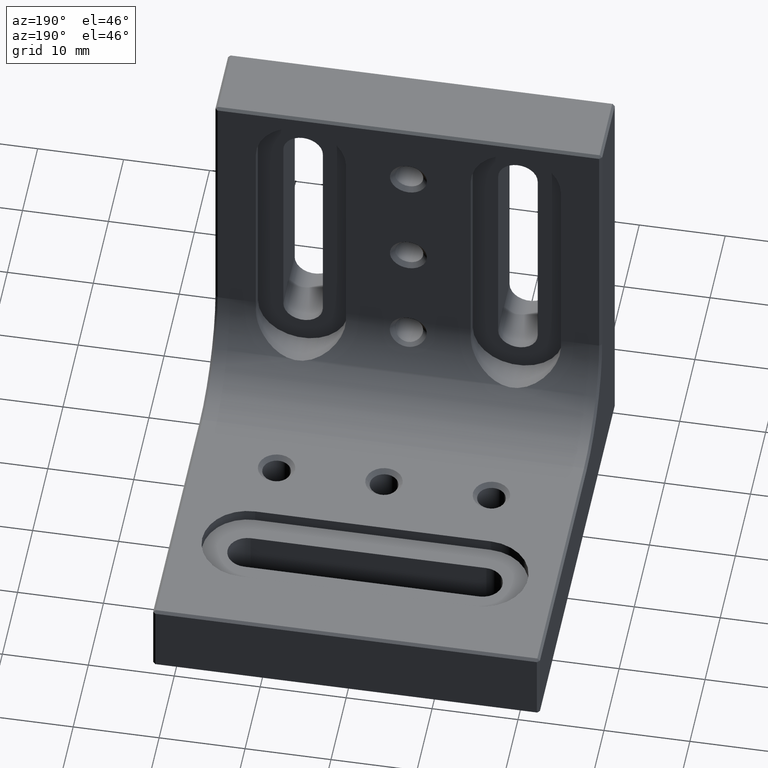
[diagram: clean part render]
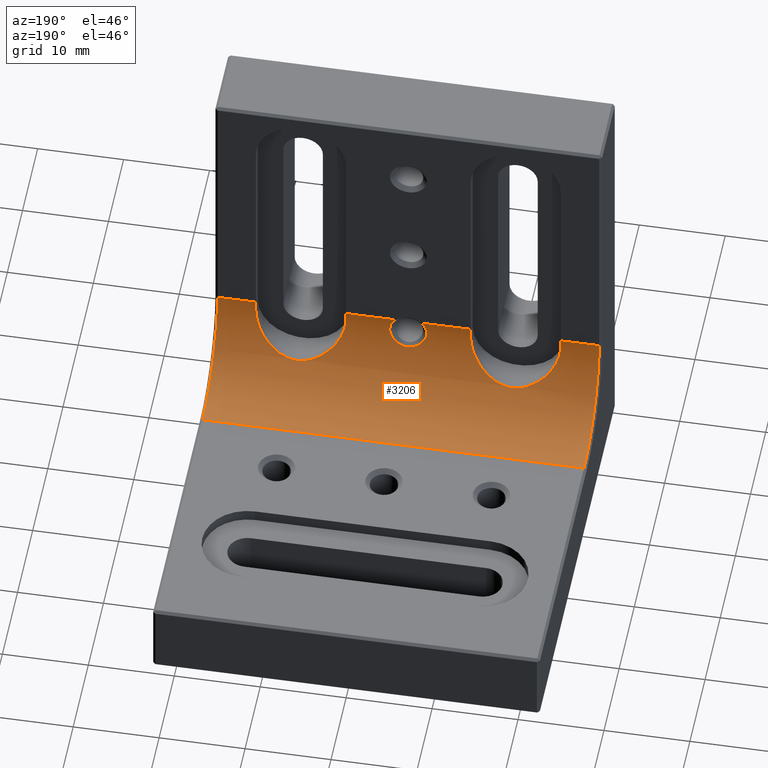
[diagram: same view with one face highlighted and labeled with its STEP entity id]
A machine part, auxiliary view. The second image highlights one B-rep face of the part: STEP entity #3206.
In plain terms, the highlighted cylindrical surface (partial cylindrical patch) has radius 10 mm, axis along (1, 0, 0).
Its self-contained STEP definition (entity closure, byte-faithful):
#7 = CARTESIAN_POINT ( 'NONE',  ( -0.5329770410534748759, 9.518524607792965497, 15.43749380868001531 ) ) ;
#13 = LINE ( 'NONE', #1801, #1559 ) ;
#88 = VERTEX_POINT ( 'NONE', #3167 ) ;
#92 = DIRECTION ( 'NONE',  ( 0.000000000000000000, 0.000000000000000000, -1.000000000000000000 ) ) ;
#143 = CARTESIAN_POINT ( 'NONE',  ( -22.50000000000000000, 8.900000000000000355, 18.89999999999999147 ) ) ;
#153 = CARTESIAN_POINT ( 'NONE',  ( 9.830262403570381835, 10.64126356667555484, 13.25691596540233874 ) ) ;
#163 = VERTEX_POINT ( 'NONE', #1252 ) ;
#170 = CARTESIAN_POINT ( 'NONE',  ( -17.04194963836521026, 9.630595705346557622, 15.13557875490741900 ) ) ;
#171 = EDGE_CURVE ( 'NONE', #2072, #2194, #1556, .T. ) ;
#172 = CARTESIAN_POINT ( 'NONE',  ( 7.321681961952192452, 9.098842714955608812, 16.90806192853562351 ) ) ;
#185 = CARTESIAN_POINT ( 'NONE',  ( -17.74085925873384895, 9.006529535375307205, 17.43334009019261188 ) ) ;
#187 = CARTESIAN_POINT ( 'NONE',  ( 8.333237051948049867, 9.876814206245750682, 14.57856026078860978 ) ) ;
#219 = CARTESIAN_POINT ( 'NONE',  ( -7.425115118801239866, 9.210921543122092103, 16.40150667806678086 ) ) ;
#223 = CARTESIAN_POINT ( 'NONE',  ( 7.596921809555468030, 9.357459637393372276, 15.90540373703046306 ) ) ;
#228 = DIRECTION ( 'NONE',  ( 0.000000000000000000, 3.469446951953613400E-15, 1.000000000000000000 ) ) ;
#248 = ORIENTED_EDGE ( 'NONE', *, *, #3611, .F. ) ;
#266 = CARTESIAN_POINT ( 'NONE',  ( 7.249999999999992895, 18.89999999999999503, 18.89999999999999147 ) ) ;
#277 = CARTESIAN_POINT ( 'NONE',  ( -1.801244126878009721, 8.899999999999996803, 18.61497348076579428 ) ) ;
#293 = CARTESIAN_POINT ( 'NONE',  ( -22.20000000000000284, 18.89999999999999503, 18.89999999999999147 ) ) ;
#308 = DIRECTION ( 'NONE',  ( -1.000000000000000000, 0.000000000000000000, 0.000000000000000000 ) ) ;
#317 = CARTESIAN_POINT ( 'NONE',  ( -0.4300247448959653718, 9.526917445615884716, 15.41494682803085148 ) ) ;
#331 = EDGE_CURVE ( 'NONE', #3451, #2801, #2104, .T. ) ;
#357 = CARTESIAN_POINT ( 'NONE',  ( 1.797709428718944791, 9.244516921121469721, 16.29624652244308081 ) ) ;
#382 = LINE ( 'NONE', #1570, #1611 ) ;
#389 = ORIENTED_EDGE ( 'NONE', *, *, #171, .F. ) ;
#416 = LINE ( 'NONE', #3546, #1259 ) ;
#429 = VERTEX_POINT ( 'NONE', #3314 ) ;
#452 = CARTESIAN_POINT ( 'NONE',  ( 7.249999999999992895, 8.961795936890805336, 17.78999999999999915 ) ) ;
#467 = CARTESIAN_POINT ( 'NONE',  ( -17.75000000000000355, 8.961795936890805336, 17.78999999999999915 ) ) ;
#470 = CARTESIAN_POINT ( 'NONE',  ( 7.537162431420297182, 9.307635266939071172, 16.06875884686546030 ) ) ;
#483 = CARTESIAN_POINT ( 'NONE',  ( -12.86041645706788117, 11.18317037623879706, 12.53992605647932734 ) ) ;
#486 = CARTESIAN_POINT ( 'NONE',  ( 16.45949435896853075, 10.00308145208230215, 14.32638021764552327 ) ) ;
#496 = CARTESIAN_POINT ( 'NONE',  ( -14.87147047841548364, 10.75664276233968764, 13.09367092105081376 ) ) ;
#498 = CARTESIAN_POINT ( 'NONE',  ( 8.548003191861003103, 10.00743111087753157, 14.31806745517764057 ) ) ;
#508 = ORIENTED_EDGE ( 'NONE', *, *, #2523, .T. ) ;
#515 = CARTESIAN_POINT ( 'NONE',  ( -7.249999999999992895, 8.981779982566365561, 17.61107610456737405 ) ) ;
#518 = CARTESIAN_POINT ( 'NONE',  ( 17.67867809741985141, 9.098391797940996284, 16.91036329719471354 ) ) ;
#538 = CARTESIAN_POINT ( 'NONE',  ( -0.2168471117832139472, 9.538467693005117098, 15.38403853151898559 ) ) ;
#552 = EDGE_CURVE ( 'NONE', #2728, #2194, #955, .T. ) ;
#559 = CARTESIAN_POINT ( 'NONE',  ( 17.70508661622474023, 9.064944058504023516, 17.08255339719457666 ) ) ;
#594 = CARTESIAN_POINT ( 'NONE',  ( 22.20000000000000284, 8.900000000000000355, 18.89999999999999147 ) ) ;
#598 = CARTESIAN_POINT ( 'NONE',  ( 17.57488488119874859, 9.210921543122092103, 16.40150667806677731 ) ) ;
#618 = ORIENTED_EDGE ( 'NONE', *, *, #2715, .F. ) ;
#630 = CARTESIAN_POINT ( 'NONE',  ( 1.646550238805394084, 8.899999999999996803, 18.75664515097510332 ) ) ;
#633 = CIRCLE ( 'NONE', #811, 10.00000000000000178 ) ;
#649 = EDGE_CURVE ( 'NONE', #3111, #1513, #3349, .T. ) ;
#655 = DIRECTION ( 'NONE',  ( 1.000000000000000000, -0.000000000000000000, -0.000000000000000000 ) ) ;
#658 = VERTEX_POINT ( 'NONE', #1446 ) ;
#671 = CARTESIAN_POINT ( 'NONE',  ( 1.979334311437581206, 8.922007466604108927, 18.22991894400422197 ) ) ;
#689 = CARTESIAN_POINT ( 'NONE',  ( 2.054101058397320045, 8.936825020740510439, 18.03716284806098358 ) ) ;
#727 = DIRECTION ( 'NONE',  ( 1.000000000000000000, -0.000000000000000000, -0.000000000000000000 ) ) ;
#733 = CARTESIAN_POINT ( 'NONE',  ( 12.86256744171844169, 11.18304831116774167, 12.54007416384138374 ) ) ;
#752 = CARTESIAN_POINT ( 'NONE',  ( -17.75000000000000355, 18.89999999999999503, 18.89999999999999147 ) ) ;
#764 = EDGE_CURVE ( 'NONE', #2072, #2933, #1530, .T. ) ;
#769 = CARTESIAN_POINT ( 'NONE',  ( 9.016561455624794164, 10.26573045186713884, 13.84814126649639832 ) ) ;
#782 = CARTESIAN_POINT ( 'NONE',  ( -12.13743255828155121, 11.18304831116774167, 12.54007416384138374 ) ) ;
#797 = CARTESIAN_POINT ( 'NONE',  ( -9.823224139731292937, 10.63837451954872648, 13.26116750677104328 ) ) ;
#799 = CARTESIAN_POINT ( 'NONE',  ( 7.434615459693820760, 9.216229134181880056, 16.39920623449153680 ) ) ;
#802 = EDGE_CURVE ( 'NONE', #658, #3058, #416, .T. ) ;
#811 = AXIS2_PLACEMENT_3D ( 'NONE', #266, #1136, #2818 ) ;
#837 = EDGE_CURVE ( 'NONE', #1513, #429, #2335, .T. ) ;
#867 = DIRECTION ( 'NONE',  ( 0.000000000000000000, 0.000000000000000000, -1.000000000000000000 ) ) ;
#883 = DIRECTION ( 'NONE',  ( 0.000000000000000000, 0.000000000000000000, -1.000000000000000000 ) ) ;
#914 = CARTESIAN_POINT ( 'NONE',  ( 2.160498817854539677, 9.005593747058970422, 17.43619728452378581 ) ) ;
#926 = ORIENTED_EDGE ( 'NONE', *, *, #3408, .T. ) ;
#932 = CARTESIAN_POINT ( 'NONE',  ( 1.934098322752847432, 8.916204682967830308, 18.32393161091767908 ) ) ;
#955 = CIRCLE ( 'NONE', #3452, 10.00000000000000000 ) ;
#959 = CARTESIAN_POINT ( 'NONE',  ( 2.083310450421948179, 8.945681289690970317, 17.94000099974112317 ) ) ;
#1033 = CARTESIAN_POINT ( 'NONE',  ( -17.20302744745261947, 9.514816261584483570, 15.43170652959533484 ) ) ;
#1035 = CARTESIAN_POINT ( 'NONE',  ( 15.17677586026869108, 10.63837451954872826, 13.26116750677103795 ) ) ;
#1049 = CARTESIAN_POINT ( 'NONE',  ( -13.90439966167397046, 11.03141571838273727, 12.72831026538218069 ) ) ;
#1051 = CARTESIAN_POINT ( 'NONE',  ( 17.47247367658843231, 9.302729019381507314, 16.07084789777194800 ) ) ;
#1052 = CARTESIAN_POINT ( 'NONE',  ( 17.75000000000000355, 8.961795936890805336, 17.78999999999999915 ) ) ;
#1072 = CARTESIAN_POINT ( 'NONE',  ( -10.59768211297706131, 10.90424338004006266, 12.89376308853185726 ) ) ;
#1093 = CARTESIAN_POINT ( 'NONE',  ( 11.09560033832602066, 11.03141571838273371, 12.72831026538218424 ) ) ;
#1104 = CARTESIAN_POINT ( 'NONE',  ( -11.78419385160859711, 11.15217349166308125, 12.57706189101133987 ) ) ;
#1118 = CIRCLE ( 'NONE', #1361, 10.00000000000000000 ) ;
#1134 = CARTESIAN_POINT ( 'NONE',  ( 22.20000000000000284, 18.89999999999999503, 18.89999999999999147 ) ) ;
#1136 = DIRECTION ( 'NONE',  ( 1.000000000000000000, -0.000000000000000000, -0.000000000000000000 ) ) ;
#1143 = CARTESIAN_POINT ( 'NONE',  ( 17.74999999999999645, 8.981779982566365561, 17.61107610456736339 ) ) ;
#1145 = CARTESIAN_POINT ( 'NONE',  ( 7.249999999999992895, 8.961795936890805336, 17.78999999999999915 ) ) ;
#1160 = CARTESIAN_POINT ( 'NONE',  ( -1.030899845775316459, 9.451713562532159330, 15.62401018657888585 ) ) ;
#1162 = CARTESIAN_POINT ( 'NONE',  ( 22.50000000000000000, 18.89999999999999503, 18.89999999999999147 ) ) ;
#1181 = CIRCLE ( 'NONE', #1855, 10.00000000000000000 ) ;
#1186 = DIRECTION ( 'NONE',  ( 0.000000000000000000, 0.000000000000000000, -1.000000000000000000 ) ) ;
#1229 = B_SPLINE_CURVE_WITH_KNOTS ( 'NONE', 3,
 ( #467, #1385, #185, #1957, #3047, #2740, #2245, #3344, #2474, #1033, #170, #3027, #2527, #2232, #1656, #3012, #496, #3062, #3323, #1049, #3602, #1602, #483, #782, #1104, #2198, #1926, #3358, #1072, #2462, #797, #2787, #1642, #2772, #1344, #2218, #1313, #2184, #219, #1365, #3076, #1940, #515, #3308 ),
 .UNSPECIFIED., .F., .F.,
 ( 4, 2, 2, 2, 2, 2, 2, 2, 2, 2, 2, 2, 2, 2, 2, 2, 2, 2, 2, 2, 2, 4 ),
 ( 0.008278306886016139829, 0.008811194253330153353, 0.009344081620644168612, 0.009876968987958182136, 0.01040985635527219740, 0.01147563108990022097, 0.01254140582452824282, 0.01360718055915626813, 0.01467295529378428998, 0.01520584266109830177, 0.01573873002841231356, 0.01680450476304033020, 0.01787027949766834684, 0.01840316686498235862, 0.01893605423229637041, 0.02000182896692439399, 0.02106760370155241410, 0.02213337843618044115, 0.02319915317080846126, 0.02426492790543648831, 0.02479781527275048969, 0.02533070264006449801 ),
 .UNSPECIFIED. ) ;
#1252 = CARTESIAN_POINT ( 'NONE',  ( -22.20000000000000284, 8.900000000000000355, 18.89999999999999147 ) ) ;
#1259 = VECTOR ( 'NONE', #655, 1000.000000000000000 ) ;
#1260 = CARTESIAN_POINT ( 'NONE',  ( 2.121013562963768972, 9.073868494751403446, 17.03207785771594729 ) ) ;
#1297 = EDGE_CURVE ( 'NONE', #658, #163, #1118, .T. ) ;
#1313 = CARTESIAN_POINT ( 'NONE',  ( -7.794553532780602367, 9.513056008991032542, 15.43633223264357390 ) ) ;
#1314 = VECTOR ( 'NONE', #1860, 1000.000000000000000 ) ;
#1317 = CARTESIAN_POINT ( 'NONE',  ( 12.13958354293210817, 11.18317037623879706, 12.53992605647932734 ) ) ;
#1322 = ORIENTED_EDGE ( 'NONE', *, *, #837, .T. ) ;
#1330 = CARTESIAN_POINT ( 'NONE',  ( 16.67273453962477703, 9.873052115425691611, 14.58654535428282983 ) ) ;
#1344 = CARTESIAN_POINT ( 'NONE',  ( -8.327265460375217643, 9.873052115425686281, 14.58654535428283694 ) ) ;
#1346 = CARTESIAN_POINT ( 'NONE',  ( 7.391463480978305078, 9.174375668233489378, 16.56703348414958654 ) ) ;
#1361 = AXIS2_PLACEMENT_3D ( 'NONE', #293, #1744, #867 ) ;
#1365 = CARTESIAN_POINT ( 'NONE',  ( -7.321321902580145924, 9.098391797940998060, 16.91036329719471709 ) ) ;
#1369 = CARTESIAN_POINT ( 'NONE',  ( 9.271943446329961702, 10.39464473007910428, 13.63596574582948939 ) ) ;
#1385 = CARTESIAN_POINT ( 'NONE',  ( -17.75000000000000000, 8.981619923822671936, 17.61250916443846748 ) ) ;
#1422 = LINE ( 'NONE', #2244, #2913 ) ;
#1427 = CARTESIAN_POINT ( 'NONE',  ( -2.192461323804824502, 8.998735615809106747, 17.44147555553262308 ) ) ;
#1431 = EDGE_CURVE ( 'NONE', #88, #3111, #633, .T. ) ;
#1446 = CARTESIAN_POINT ( 'NONE',  ( -22.20000000000000284, 18.89999999999999503, 8.900000000000000355 ) ) ;
#1459 = CARTESIAN_POINT ( 'NONE',  ( -0.1087773723836883283, 9.541400626343959246, 15.37627785260522195 ) ) ;
#1499 = CARTESIAN_POINT ( 'NONE',  ( 2.070640217337750499, 9.113275780284242344, 16.83679069486604263 ) ) ;
#1513 = VERTEX_POINT ( 'NONE', #1052 ) ;
#1530 = B_SPLINE_CURVE_WITH_KNOTS ( 'NONE', 3,
 ( #3119, #277, #2000, #1427, #2568, #2247, #3456, #1733, #1160, #3155, #2880, #7, #317, #538, #1459, #2602, #1981, #2327, #3103, #2052, #1681, #2812, #2129, #1538, #357, #3250, #1846, #1499, #1260, #914, #3511, #959, #689, #671, #932, #2359, #630, #3473 ),
 .UNSPECIFIED., .F., .F.,
 ( 4, 2, 2, 2, 2, 2, 2, 2, 2, 2, 2, 2, 2, 2, 2, 2, 2, 2, 4 ),
 ( 0.000000000000000000, 0.1249999999999993616, 0.2499999999999987232, 0.3749999999999981126, 0.4062499999999981681, 0.4374999999999982236, 0.4687499999999982792, 0.4999999999999983347, 0.5624999999999984457, 0.6249999999999985567, 0.6562499999999988898, 0.6874999999999991118, 0.7187499999999994449, 0.7499999999999996669, 0.8124999999999993339, 0.8749999999999988898, 0.9062499999999991118, 0.9374999999999994449, 1.000000000000000000 ),
 .UNSPECIFIED. ) ;
#1538 = CARTESIAN_POINT ( 'NONE',  ( 1.737186796571384306, 9.267365781669717251, 16.21318945527199773 ) ) ;
#1556 = LINE ( 'NONE', #143, #1314 ) ;
#1559 = VECTOR ( 'NONE', #308, 1000.000000000000000 ) ;
#1570 = CARTESIAN_POINT ( 'NONE',  ( -22.50000000000000000, 8.900000000000000355, 18.89999999999999147 ) ) ;
#1602 = CARTESIAN_POINT ( 'NONE',  ( -13.21364169677684153, 11.15242039283450559, 12.57676171103758378 ) ) ;
#1604 = CARTESIAN_POINT ( 'NONE',  ( 7.249999999999995559, 8.981619923822671936, 17.61250916443846748 ) ) ;
#1611 = VECTOR ( 'NONE', #3518, 1000.000000000000000 ) ;
#1630 = CARTESIAN_POINT ( 'NONE',  ( 7.796972552547371649, 9.514816261584487123, 15.43170652959534195 ) ) ;
#1642 = CARTESIAN_POINT ( 'NONE',  ( -9.011806125350361185, 10.26331998139761303, 13.85213750007981304 ) ) ;
#1644 = CARTESIAN_POINT ( 'NONE',  ( 10.60034490881950475, 10.90500706680369269, 12.89275278380834067 ) ) ;
#1656 = CARTESIAN_POINT ( 'NONE',  ( -15.72805655367003475, 10.39464473007910961, 13.63596574582948939 ) ) ;
#1664 = DIRECTION ( 'NONE',  ( 1.000000000000000000, -0.000000000000000000, -0.000000000000000000 ) ) ;
#1681 = CARTESIAN_POINT ( 'NONE',  ( 1.378309601269583906, 9.376490279387343918, 15.84913333256163170 ) ) ;
#1733 = CARTESIAN_POINT ( 'NONE',  ( -1.120427493591405366, 9.434695513196437844, 15.67330188094929966 ) ) ;
#1744 = DIRECTION ( 'NONE',  ( -1.000000000000000000, -0.000000000000000000, -0.000000000000000000 ) ) ;
#1801 = CARTESIAN_POINT ( 'NONE',  ( -22.50000000000000000, 8.900000000000000355, 18.89999999999999147 ) ) ;
#1846 = CARTESIAN_POINT ( 'NONE',  ( 1.950440374502350638, 9.178026469194959347, 16.55640627161684364 ) ) ;
#1855 = AXIS2_PLACEMENT_3D ( 'NONE', #1134, #727, #3560 ) ;
#1860 = DIRECTION ( 'NONE',  ( -1.000000000000000000, 0.000000000000000000, 0.000000000000000000 ) ) ;
#1892 = CARTESIAN_POINT ( 'NONE',  ( 14.40231788702292626, 10.90424338004006444, 12.89376308853185726 ) ) ;
#1926 = CARTESIAN_POINT ( 'NONE',  ( -11.09368354771057419, 11.03100248056350452, 12.72883543086806135 ) ) ;
#1930 = CARTESIAN_POINT ( 'NONE',  ( 10.12852952158450748, 10.75664276233968764, 13.09367092105081376 ) ) ;
#1940 = CARTESIAN_POINT ( 'NONE',  ( -7.259246848223134485, 9.006697217524529009, 17.43234963950285632 ) ) ;
#1957 = CARTESIAN_POINT ( 'NONE',  ( -17.70494985150281408, 9.065161802911806177, 17.08126231618399160 ) ) ;
#1981 = CARTESIAN_POINT ( 'NONE',  ( 0.4292949361309602030, 9.529620965591329096, 15.40714037558097971 ) ) ;
#1997 = ORIENTED_EDGE ( 'NONE', *, *, #802, .F. ) ;
#2000 = CARTESIAN_POINT ( 'NONE',  ( -2.016853868643376568, 8.913490969470799996, 18.24275777378912622 ) ) ;
#2027 = VERTEX_POINT ( 'NONE', #594 ) ;
#2052 = CARTESIAN_POINT ( 'NONE',  ( 1.294564640958576485, 9.397063015482208570, 15.78588031207848985 ) ) ;
#2071 = CYLINDRICAL_SURFACE ( 'NONE', #3502, 10.00000000000000000 ) ;
#2072 = VERTEX_POINT ( 'NONE', #2876 ) ;
#2104 = CIRCLE ( 'NONE', #2752, 10.00000000000000178 ) ;
#2107 = EDGE_CURVE ( 'NONE', #88, #2933, #1422, .T. ) ;
#2129 = CARTESIAN_POINT ( 'NONE',  ( 1.604467579555619361, 9.312264933727030680, 16.05712659684455090 ) ) ;
#2169 = CARTESIAN_POINT ( 'NONE',  ( 11.26769101727525957, 11.06681707892227351, 12.68362417625606753 ) ) ;
#2184 = CARTESIAN_POINT ( 'NONE',  ( -7.527526323411560583, 9.302729019381503761, 16.07084789777194800 ) ) ;
#2194 = VERTEX_POINT ( 'NONE', #3151 ) ;
#2198 = CARTESIAN_POINT ( 'NONE',  ( -11.26564436237275402, 11.06642362335527707, 12.68411939990630444 ) ) ;
#2218 = CARTESIAN_POINT ( 'NONE',  ( -7.955280604741111539, 9.628617507889314808, 15.14059236362121297 ) ) ;
#2232 = CARTESIAN_POINT ( 'NONE',  ( -15.98343854437520051, 10.26573045186713529, 13.84814126649639299 ) ) ;
#2234 = CARTESIAN_POINT ( 'NONE',  ( 13.73435563762722289, 11.06642362335527885, 12.68411939990629556 ) ) ;
#2244 = CARTESIAN_POINT ( 'NONE',  ( -22.50000000000000000, 8.900000000000000355, 18.89999999999999147 ) ) ;
#2245 = CARTESIAN_POINT ( 'NONE',  ( -17.56538454030616947, 9.216229134181881832, 16.39920623449153680 ) ) ;
#2247 = CARTESIAN_POINT ( 'NONE',  ( -1.831904686822350969, 9.242016808503546343, 16.27906948131892761 ) ) ;
#2290 = CARTESIAN_POINT ( 'NONE',  ( 17.75000000000000355, 8.961795936890805336, 17.78999999999999915 ) ) ;
#2293 = EDGE_LOOP ( 'NONE', ( #389, #2485, #2992, #2717, #3005, #1322, #618, #508, #1997, #2932, #248, #2852, #926, #2819 ) ) ;
#2304 = CARTESIAN_POINT ( 'NONE',  ( 17.74075315177686463, 9.006697217524525456, 17.43234963950284921 ) ) ;
#2310 = CARTESIAN_POINT ( 'NONE',  ( -7.249999999999992895, 8.961795936890805336, 17.78999999999999915 ) ) ;
#2327 = CARTESIAN_POINT ( 'NONE',  ( 0.8375481057792897310, 9.485810535909452668, 15.52700306276617859 ) ) ;
#2335 = CIRCLE ( 'NONE', #3160, 10.00000000000000000 ) ;
#2359 = CARTESIAN_POINT ( 'NONE',  ( 1.778526964638802221, 8.903128510878566715, 18.59233896060029068 ) ) ;
#2462 = CARTESIAN_POINT ( 'NONE',  ( -10.12415284730113463, 10.75511693135851310, 13.09578576830428887 ) ) ;
#2463 = CARTESIAN_POINT ( 'NONE',  ( 11.78635830322314781, 11.15242039283450914, 12.57676171103758733 ) ) ;
#2474 = CARTESIAN_POINT ( 'NONE',  ( -17.40307819044452486, 9.357459637393372276, 15.90540373703046306 ) ) ;
#2476 = CARTESIAN_POINT ( 'NONE',  ( 17.04471939525888047, 9.628617507889320137, 15.14059236362120409 ) ) ;
#2485 = ORIENTED_EDGE ( 'NONE', *, *, #764, .T. ) ;
#2514 = CARTESIAN_POINT ( 'NONE',  ( 7.259140741266149277, 9.006529535375307205, 17.43334009019261188 ) ) ;
#2523 = EDGE_CURVE ( 'NONE', #2027, #3058, #1181, .T. ) ;
#2527 = CARTESIAN_POINT ( 'NONE',  ( -16.45199680813899334, 10.00743111087753157, 14.31806745517763879 ) ) ;
#2540 = DIRECTION ( 'NONE',  ( -1.000000000000000000, 0.000000000000000000, 0.000000000000000000 ) ) ;
#2568 = CARTESIAN_POINT ( 'NONE',  ( -2.150315120495939425, 9.070218917409816228, 17.02348195336841741 ) ) ;
#2586 = FACE_OUTER_BOUND ( 'NONE', #2293, .T. ) ;
#2602 = CARTESIAN_POINT ( 'NONE',  ( 0.2134777988177259389, 9.541498864597848240, 15.37601695049205830 ) ) ;
#2663 = DIRECTION ( 'NONE',  ( -1.000000000000000000, -0.000000000000000000, 0.000000000000000000 ) ) ;
#2715 = EDGE_CURVE ( 'NONE', #2027, #429, #13, .T. ) ;
#2717 = ORIENTED_EDGE ( 'NONE', *, *, #1431, .T. ) ;
#2728 = VERTEX_POINT ( 'NONE', #2310 ) ;
#2740 = CARTESIAN_POINT ( 'NONE',  ( -17.60853651902169048, 9.174375668233492931, 16.56703348414959365 ) ) ;
#2744 = CARTESIAN_POINT ( 'NONE',  ( 15.73239598293186781, 10.39250351052352173, 13.63944955850798202 ) ) ;
#2752 = AXIS2_PLACEMENT_3D ( 'NONE', #752, #1664, #228 ) ;
#2762 = CARTESIAN_POINT ( 'NONE',  ( 10.76209727839122543, 10.95048436964155059, 12.83291058084784630 ) ) ;
#2772 = CARTESIAN_POINT ( 'NONE',  ( -8.540505641031460371, 10.00308145208229504, 14.32638021764553393 ) ) ;
#2787 = CARTESIAN_POINT ( 'NONE',  ( -9.267604017068117983, 10.39250351052351640, 13.63944955850798557 ) ) ;
#2794 = CARTESIAN_POINT ( 'NONE',  ( 22.20000000000000284, 18.89999999999999503, 8.900000000000000355 ) ) ;
#2801 = VERTEX_POINT ( 'NONE', #3015 ) ;
#2812 = CARTESIAN_POINT ( 'NONE',  ( 1.532778702885401412, 9.334196753104055944, 15.98444978387179560 ) ) ;
#2818 = DIRECTION ( 'NONE',  ( 0.000000000000000000, 3.469446951953613400E-15, 1.000000000000000000 ) ) ;
#2819 = ORIENTED_EDGE ( 'NONE', *, *, #552, .T. ) ;
#2852 = ORIENTED_EDGE ( 'NONE', *, *, #331, .T. ) ;
#2876 = CARTESIAN_POINT ( 'NONE',  ( -1.489966442575124672, 8.900000000000000355, 18.89999999999999147 ) ) ;
#2880 = CARTESIAN_POINT ( 'NONE',  ( -0.7376809995708148993, 9.496496836034408418, 15.49777162659463414 ) ) ;
#2913 = VECTOR ( 'NONE', #2540, 1000.000000000000000 ) ;
#2932 = ORIENTED_EDGE ( 'NONE', *, *, #1297, .T. ) ;
#2933 = VERTEX_POINT ( 'NONE', #2945 ) ;
#2945 = CARTESIAN_POINT ( 'NONE',  ( 1.489966442575131556, 8.900000000000000355, 18.89999999999999147 ) ) ;
#2992 = ORIENTED_EDGE ( 'NONE', *, *, #2107, .F. ) ;
#3005 = ORIENTED_EDGE ( 'NONE', *, *, #649, .T. ) ;
#3012 = CARTESIAN_POINT ( 'NONE',  ( -15.16973759642961106, 10.64126356667555839, 13.25691596540233341 ) ) ;
#3013 = CARTESIAN_POINT ( 'NONE',  ( 14.87584715269885294, 10.75511693135851132, 13.09578576830428709 ) ) ;
#3015 = CARTESIAN_POINT ( 'NONE',  ( -17.75000000000000355, 8.961795936890805336, 17.78999999999999915 ) ) ;
#3027 = CARTESIAN_POINT ( 'NONE',  ( -16.66676294805193947, 9.876814206245748906, 14.57856026078859912 ) ) ;
#3047 = CARTESIAN_POINT ( 'NONE',  ( -17.67831803804779867, 9.098842714955608812, 16.90806192853562706 ) ) ;
#3050 = CARTESIAN_POINT ( 'NONE',  ( 13.21580614839138690, 11.15217349166308658, 12.57706189101133987 ) ) ;
#3058 = VERTEX_POINT ( 'NONE', #2794 ) ;
#3062 = CARTESIAN_POINT ( 'NONE',  ( -14.39965509118049170, 10.90500706680368559, 12.89275278380833178 ) ) ;
#3076 = CARTESIAN_POINT ( 'NONE',  ( -7.294913383775255333, 9.064944058504025293, 17.08255339719457311 ) ) ;
#3100 = CARTESIAN_POINT ( 'NONE',  ( -17.75000000000000355, 8.899999999999996803, 18.89999999999999147 ) ) ;
#3103 = CARTESIAN_POINT ( 'NONE',  ( 1.032073359716757510, 9.453759032816940078, 15.61629132845523316 ) ) ;
#3111 = VERTEX_POINT ( 'NONE', #1145 ) ;
#3119 = CARTESIAN_POINT ( 'NONE',  ( -1.489966442575124672, 8.900000000000000355, 18.89999999999999147 ) ) ;
#3151 = CARTESIAN_POINT ( 'NONE',  ( -7.249999999999992895, 8.899999999999995026, 18.89999999999999147 ) ) ;
#3155 = CARTESIAN_POINT ( 'NONE',  ( -0.8371509003528183612, 9.483045089496005886, 15.53500578371783902 ) ) ;
#3160 = AXIS2_PLACEMENT_3D ( 'NONE', #3232, #2663, #92 ) ;
#3167 = CARTESIAN_POINT ( 'NONE',  ( 7.249999999999992895, 8.899999999999995026, 18.89999999999999147 ) ) ;
#3177 = CARTESIAN_POINT ( 'NONE',  ( -7.249999999999992895, 18.89999999999999503, 18.89999999999999147 ) ) ;
#3206 = ADVANCED_FACE ( 'NONE', ( #2586 ), #2071, .F. ) ;
#3232 = CARTESIAN_POINT ( 'NONE',  ( 17.75000000000000355, 18.89999999999999503, 18.89999999999999147 ) ) ;
#3250 = CARTESIAN_POINT ( 'NONE',  ( 1.904350647074205316, 9.199799942037156342, 16.46812736889923912 ) ) ;
#3294 = CARTESIAN_POINT ( 'NONE',  ( 7.958050361634786185, 9.630595705346559399, 15.13557875490742610 ) ) ;
#3308 = CARTESIAN_POINT ( 'NONE',  ( -7.249999999999992895, 8.961795936890805336, 17.78999999999999915 ) ) ;
#3310 = CARTESIAN_POINT ( 'NONE',  ( 15.98819387464962460, 10.26331998139761836, 13.85213750007980771 ) ) ;
#3314 = CARTESIAN_POINT ( 'NONE',  ( 17.75000000000000355, 8.899999999999996803, 18.89999999999999147 ) ) ;
#3323 = CARTESIAN_POINT ( 'NONE',  ( -14.23790272160876391, 10.95048436964155059, 12.83291058084784630 ) ) ;
#3344 = CARTESIAN_POINT ( 'NONE',  ( -17.46283756857969394, 9.307635266939065843, 16.06875884686545675 ) ) ;
#3349 = B_SPLINE_CURVE_WITH_KNOTS ( 'NONE', 3,
 ( #452, #1604, #2514, #3642, #172, #1346, #799, #470, #223, #1630, #3294, #187, #498, #769, #1369, #153, #1930, #1644, #2762, #1093, #2169, #2463, #1317, #733, #3050, #2234, #3362, #3589, #1892, #3013, #1035, #2744, #3310, #486, #1330, #2476, #3604, #1051, #598, #518, #559, #2304, #1143, #2290 ),
 .UNSPECIFIED., .F., .F.,
 ( 4, 2, 2, 2, 2, 2, 2, 2, 2, 2, 2, 2, 2, 2, 2, 2, 2, 2, 2, 2, 2, 4 ),
 ( 0.008278306886016138094, 0.008811194253330144679, 0.009344081620644151265, 0.009876968987958159585, 0.01040985635527216617, 0.01147563108990018628, 0.01254140582452820812, 0.01360718055915622823, 0.01467295529378424834, 0.01520584266109826013, 0.01573873002841227192, 0.01680450476304030244, 0.01787027949766833296, 0.01840316686498234128, 0.01893605423229635654, 0.02000182896692438012, 0.02106760370155240369, 0.02213337843618042727, 0.02319915317080845085, 0.02426492790543647096, 0.02479781527275047581, 0.02533070264006448413 ),
 .UNSPECIFIED. ) ;
#3358 = CARTESIAN_POINT ( 'NONE',  ( -10.75983470480712434, 10.94988274516899907, 12.83369719395367525 ) ) ;
#3362 = CARTESIAN_POINT ( 'NONE',  ( 13.90631645228941515, 11.03100248056350452, 12.72883543086806135 ) ) ;
#3406 = DIRECTION ( 'NONE',  ( -1.000000000000000000, -0.000000000000000000, 0.000000000000000000 ) ) ;
#3408 = EDGE_CURVE ( 'NONE', #2801, #2728, #1229, .T. ) ;
#3435 = DIRECTION ( 'NONE',  ( 1.000000000000000000, 0.000000000000000000, 0.000000000000000000 ) ) ;
#3451 = VERTEX_POINT ( 'NONE', #3100 ) ;
#3452 = AXIS2_PLACEMENT_3D ( 'NONE', #3177, #3406, #1186 ) ;
#3456 = CARTESIAN_POINT ( 'NONE',  ( -1.558402231517179493, 9.339994562259802180, 15.95663245574075617 ) ) ;
#3473 = CARTESIAN_POINT ( 'NONE',  ( 1.489966442575131556, 8.900000000000000355, 18.89999999999999147 ) ) ;
#3502 = AXIS2_PLACEMENT_3D ( 'NONE', #1162, #3435, #883 ) ;
#3511 = CARTESIAN_POINT ( 'NONE',  ( 2.148562482622774272, 8.977566918065567947, 17.64081057733194768 ) ) ;
#3518 = DIRECTION ( 'NONE',  ( -1.000000000000000000, 0.000000000000000000, 0.000000000000000000 ) ) ;
#3546 = CARTESIAN_POINT ( 'NONE',  ( 22.50000000000000000, 18.89999999999999503, 8.900000000000000355 ) ) ;
#3560 = DIRECTION ( 'NONE',  ( 0.000000000000000000, 0.000000000000000000, -1.000000000000000000 ) ) ;
#3589 = CARTESIAN_POINT ( 'NONE',  ( 14.24016529519287566, 10.94988274516900439, 12.83369719395367170 ) ) ;
#3602 = CARTESIAN_POINT ( 'NONE',  ( -13.73230898272473510, 11.06681707892227173, 12.68362417625606575 ) ) ;
#3604 = CARTESIAN_POINT ( 'NONE',  ( 17.20544646721939230, 9.513056008991030765, 15.43633223264356680 ) ) ;
#3611 = EDGE_CURVE ( 'NONE', #3451, #163, #382, .T. ) ;
#3642 = CARTESIAN_POINT ( 'NONE',  ( 7.295050148497176146, 9.065161802911806177, 17.08126231618399160 ) ) ;